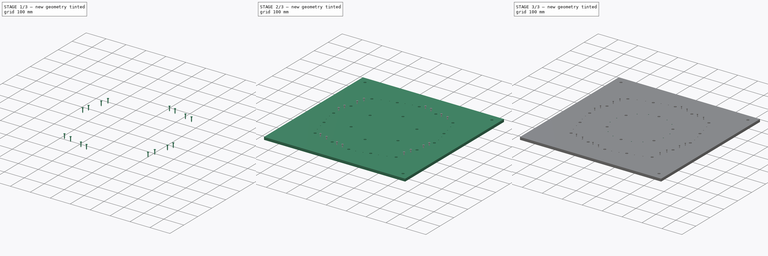
[diagram: build sequence overview — one tinted view per stage of 3, left to right]
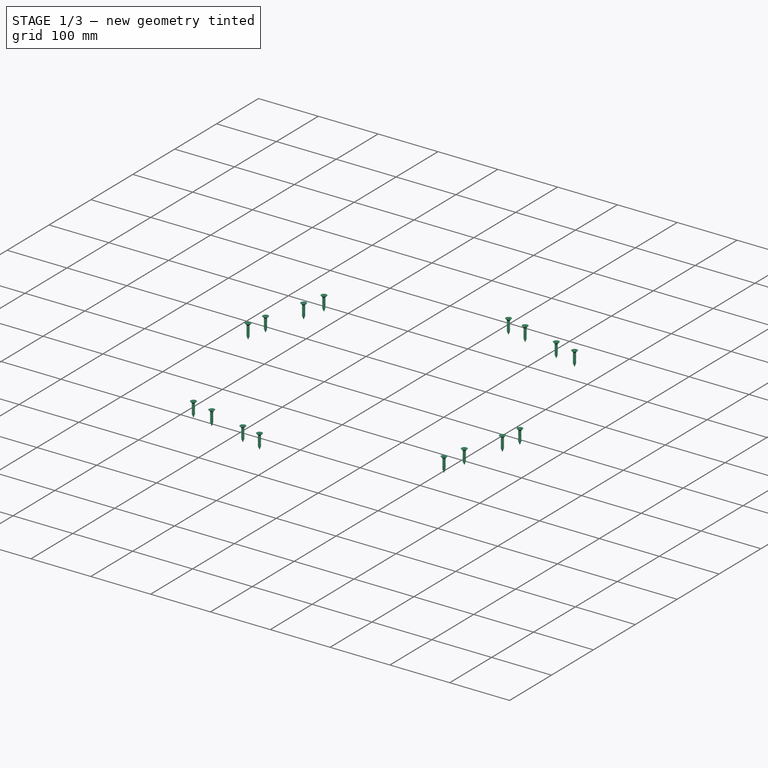
[diagram: stage 1 of 3 — iso view after this stage's code; geometry added in this stage tinted green]
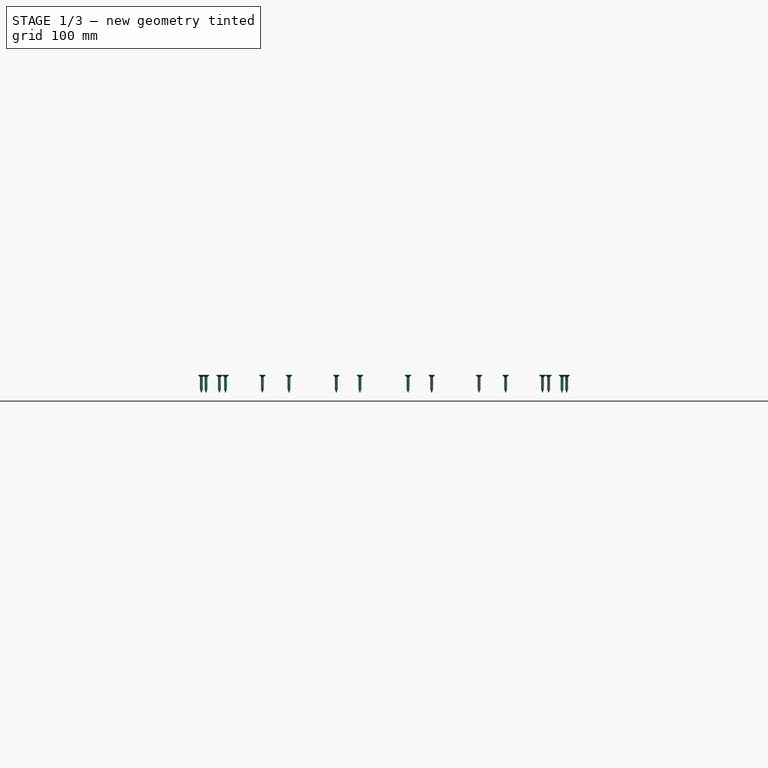
[diagram: stage 1 of 3 — front view after this stage's code; geometry added in this stage tinted green]
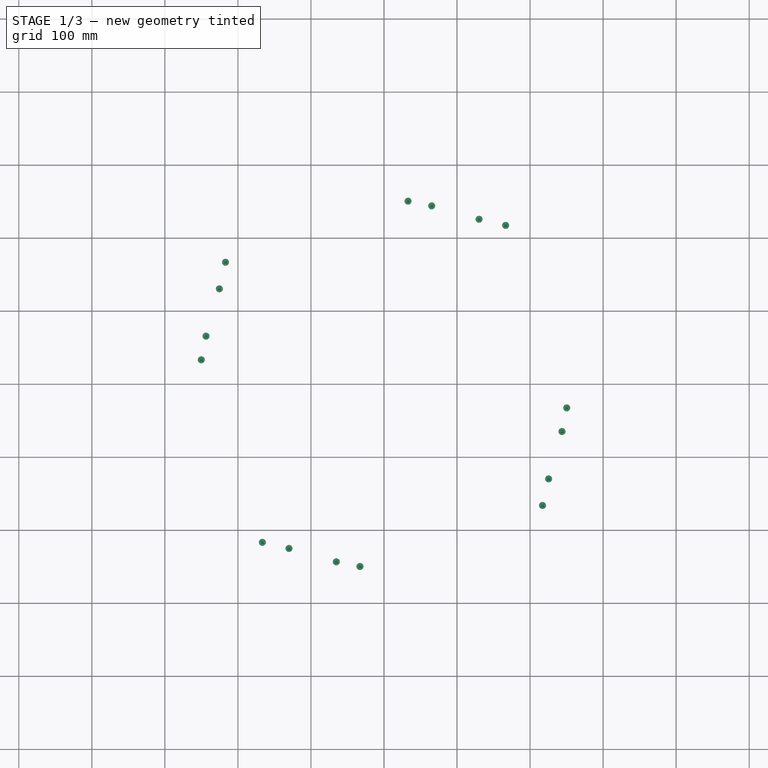
[diagram: stage 1 of 3 — top view after this stage's code; geometry added in this stage tinted green]
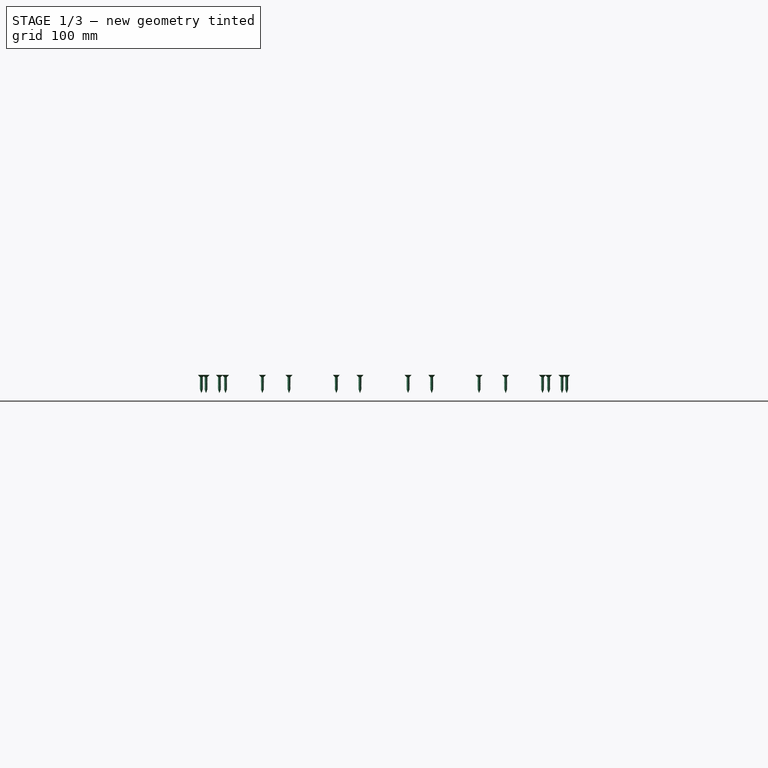
[diagram: stage 1 of 3 — right view after this stage's code; geometry added in this stage tinted green]
FCSTD DOCUMENT  (FreeCAD 0.21R33771 (Git))
Label: Stator_Mold_BoltShaftLayer_Circular
License: All rights reserved
LicenseURL: http://en.wikipedia.org/wiki/All_rights_reserved
objects: App::Link×7, App::Part×4, Sketcher::SketchObject×2, PartDesign::PolarPattern×2, PartDesign::Pocket×2, Part::FeaturePython×2, Spreadsheet::Sheet×1, PartDesign::Plane×1, PartDesign::Mirrored×1, PartDesign::SubShapeBinder×1, PartDesign::FeatureBase×1, PartDesign::MultiTransform×1, PartDesign::Body×1, Part::Mirroring×1
note: 15 computed .brp shape members not serialized (recipe doc carries the construction recipe); baked Part::Feature solids carry a one-line shape summary decoded from their .brp
EXTERNAL_REF file=../../../Master_of_Puppets.FCStd obj=Alternator
EXTERNAL_REF file=../../../Master_of_Puppets.FCStd obj=Spreadsheet
EXTERNAL_REF file=Stator_Mold_BoltShaftPattern_Circular.FCStd obj=Body
EXTERNAL_REF file=../../../Fasteners/Fastener_WoodScrew_StatorMold.FCStd obj=Part

FEATURE [Spreadsheet::Sheet] Spreadsheet
  cells = A1='Inputs; A2='StatorThickness; B2='NumberOfHoles; C2='EarAngle; A3(StatorThickness)==Master_of_Puppets#Spreadsheet.StatorThickness; B3(NumberOfHoles)==Master_of_Puppets#Alternator.NumberOfStatorHoles; C3(EarAngle)==Master_of_Puppets#Alternator.EarAngle; A4='StatorMoldScrewHoleRadius; B4='EarSize; C4='LengthMiddleHoles; A5(StatorMoldScrewHoleRadius)==Master_of_Puppets#Alternator.StatorMoldScrewHoleRadius; B5(EarSize)==Master_of_Puppets#Alternator.EarSize; C5(LengthMiddleHoles)==Master_of_Puppets#Alternator.LengthMiddleHoles; A6='IslandInnerRadius; B6='LargeHoleAngle; C6='StatorMoldIslandScrewAngle; A7(IslandInnerRadius)==Master_of_Puppets#Alternator.IslandInnerRadius; B7(LargeHoleAngle)==Master_of_Puppets#Alternator.LargeHoleAngle; C7(StatorMoldIslandScrewAngle)==Master_of_Puppets#Alternator.StatorMoldIslandScrewAngle; A8='StatorMoldIslandNumberOfScrewSectors; B8='StatorMoldHolesSketchAngle; C8='StatorMoldIslandNumberOfBolts; A9(StatorMoldIslandNumberOfScrewSectors)==Master_of_Puppets#Alternator.StatorMoldIslandNumberOfScrewSectors; B9(StatorMoldHolesSketchAngle)==Master_of_Puppets#Alternator.StatorMoldHolesSketchAngle; C9(StatorMoldIslandNumberOfBolts)==Master_of_Puppets#Alternator.StatorMoldIslandNumberOfBolts; A10='RotorDiskRadius; B10='StatorMoldIslandNumberOfPolarPatternScrewOccurrences; C10='StatorMoldScrewLength; A11(RotorDiskRadius)==Master_of_Puppets#Spreadsheet.RotorDiskRadius; B11(StatorMoldIslandNumberOfPolarPatternScrewOccurrences)==Master_of_Puppets#Alternator.StatorMoldIslandNumberOfPolarPatternScrewOccurrences; C11(StatorMoldScrewLength)==Master_of_Puppets#Alternator.StatorMoldScrewLength; A12='Calculated; A13='SpokeAngle; B13='ScrewZ; C13='IslandScrewAngleOffset; A14(SpokeAngle)==LargeHoleAngle / 3; B14(ScrewZ)==StatorThickness * 2 - StatorMoldScrewLength; C14(IslandScrewAngleOffset)==90 deg; A15='InnerScrew1X; B15='InnerScrew1Y; A16(InnerScrew1X)==IslandInnerRadius * cos(StatorMoldIslandScrewAngle + IslandScrewAngleOffset); B16(InnerScrew1Y)==IslandInnerRadius * sin(StatorMoldIslandScrewAngle + IslandScrewAngleOffset); A17='InnerScrew2X; B17='InnerScrew2Y; A18(InnerScrew2X)==IslandInnerRadius * cos(StatorMoldIslandScrewAngle * 2 + IslandScrewAngleOffset); B18(InnerScrew2Y)==IslandInnerRadius * sin(StatorMoldIslandScrewAngle * 2 + IslandScrewAngleOffset); A19='Description:; B19='Calculate position of 4 outer screws. From perspective of TOP view going counter clockwise.; A20='OuterScrewBaseAngle; A21(OuterScrewBaseAngle)==270 - EarAngle / 2 + SpokeAngle; A22='OuterScrew1X; B22='OuterScrew1Y; A23(OuterScrew1X)==LengthMiddleHoles * cos(OuterScrewBaseAngle); B23(OuterScrew1Y)==LengthMiddleHoles * sin(OuterScrewBaseAngle); A24='OuterScrew2X; B24='OuterScrew2Y; A25(OuterScrew2X)==LengthMiddleHoles * cos(OuterScrewBaseAngle + SpokeAngle); B25(OuterScrew2Y)==LengthMiddleHoles * sin(OuterScrewBaseAngle + SpokeAngle); A26='Description:; B26='The following equations are to determine the placement of the outer screws by finding the equation of the line tangent to the circle that forms the "ear" and crosses through the point where the bolt is.; A27='BoltAngle; A28(BoltAngle)==270 - EarAngle / 2 + LargeHoleAngle; A29='a = x coordinate of external point; B29='b = y coordinate of external point; C29='r = radius of circle; D29='v = vertical offset of center of circle ; A30='a; B30='b; C30='r; D30='v; A31(a)==LengthMiddleHoles * cos(BoltAngle); B31(b)==LengthMiddleHoles * sin(BoltAngle); C31(r)==EarSize; D31(v)==-LengthMiddleHoles; A32='1) equation for slope of tangent line is derived from plugging in point slope form equation of a line in terms of y into y for equation of circle; B32='2) then the equation is set to the standard form for a quadratic equation (a * x^2 + b * x + c) to determine a, b, and c.; C32='3) once a, b, and c are determined, then we plug it into b^2 - 4*a*c = 0 and solve for m; D32='4) this results in a quadratic equation for m with two solutions, and the negative solution is chosen.; A33='https://www.wolframalpha.com/input?i=x%5E2+%2B+%28mx+-+ma+%2B+b+-+v%29%5E2+%3D+r%5E2; B33=' a = (m^2 + 1), b = (-2*(m^2)*a + 2*b*m - 2*m*v), c = ((a^2)*(m^2) - 2*a*b*m + 2*a*m*v + b^2 - 2*b*v + v^2 - r^2).; C33='https://www.wolframalpha.com/input?i=%28-2*%28m%5E2%29*a+%2B+2*b*m+-+2*m*v%29%5E2+-+4*%28m%5E2+%2B+1%29*%28%28a%5E2%29*%28m%5E2%29+-+2*a*b*m+%2B+2*a*m*v+%2B+b%5E2+-+2*b*v+%2B+v%5E2+-+r%5E2%29+solve+for+m; A34='Equation of tangent line; A35='p (slope); B35='yIntercept; A36(p)==(-sqrt(r ^ 2 * (a ^ 2 + b ^ 2 - 2 * b * v - r ^ 2 + v ^ 2)) + a * b - a * v) / (a ^ 2 - r ^ 2); B36(yIntercept)==b - p * a; A37='Tx; B37='Ty; C37='(T)angent Point Coordinates; A38(Tx)==(-sqrt(-(a ^ 2) * p ^ 2 + 2 * b * (a * p + v) - 2 * a * p * v - b ^ 2 + p ^ 2 * r ^ 2 + r ^ 2 - v ^ 2) + a * p ^ 2 - b * p + p * v) / (p ^ 2 + 1); B38(Ty)==p * Tx + yIntercept; A39='TangentPoint; B39='BoltPoint; C39='Vector; A40(TangentPoint)==create(<<vector>>; Tx; Ty; 0); B40(BoltPoint)==create(<<vector>>; a; b; 0); C40(Vector)==TangentPoint - BoltPoint; A41='DistanceBetweenTangentPointAndBoltPoint; B41='ThirdOfDistance; C41='NormalizedVector; A42(DistanceBetweenTangentPointAndBoltPoint)==.Vector.Length; B42(ThirdOfDistance)==DistanceBetweenTangentPointAndBoltPoint / 3; C42(NormalizedVector)==.Vector / .Vector.Length; A43='Point1; B43='SpokeArcLength; A44(Point1)==TangentPoint - NormalizedVector * SpokeArcLength; B44(SpokeArcLength)==SpokeAngle * pi / 180 * LengthMiddleHoles; A45='Point3Angle; B45='Point3AlongCircle; C45='LineFromOriginToPoint3AlongCircleSlope; A46(Point3Angle)==OuterScrewBaseAngle + SpokeAngle * 3; B46(Point3AlongCircle)==create(<<vector>>; LengthMiddleHoles * cos(Point3Angle); LengthMiddleHoles * sin(Point3Angle); 0); C46(LineFromOriginToPoint3AlongCircleSlope)==.Point3AlongCircle.y / .Point3AlongCircle.x; A47='Intersection between tangent line and line from origin to point 3 along circle.; A48='OuterScrew3X; B48='OuterScrew3Y; C48='OuterScrew3Point; A49(OuterScrew3X)==yIntercept / (LineFromOriginToPoint3AlongCircleSlope - p); B49(OuterScrew3Y)==LineFromOriginToPoint3AlongCircleSlope * OuterScrew3X; C49(OuterScrew3Point)==create(<<vector>>; OuterScrew3X; OuterScrew3Y; 0); A50='Point4Angle; B50='Point4AlongCircle; C50='LineFromOriginToPoint4AlongCircleSlope; A51(Point4Angle)==Point3Angle + SpokeAngle; B51(Point4AlongCircle)==create(<<vector>>; LengthMiddleHoles * cos(Point4Angle); LengthMiddleHoles * sin(Point4Angle); 0); C51(LineFromOriginToPoint4AlongCircleSlope)==.Point4AlongCircle.y / .Point4AlongCircle.x; A52='Intersection between tangent line and line from origin to point 4 along circle.; A53='OuterScrew4X; B53='OuterScrew4Y; C53='OuterScrew4Point; A54(OuterScrew4X)==yIntercept / (LineFromOriginToPoint4AlongCircleSlope - p); B54(OuterScrew4Y)==LineFromOriginToPoint4AlongCircleSlope * OuterScrew4X; C54(OuterScrew4Point)==create(<<vector>>; OuterScrew4X; OuterScrew4Y; 0)
FEATURE [PartDesign::Plane] DatumPlane001  label="DatumPlane"
  AttachmentOffset = pos=(0,0,13) rot=(0,0,1;0rad)
  Length = 849.239
  MapMode = 5
  Placement = pos=(0,0,13) rot=(0,0,1;0rad)
  ResizeMode = 0
  Support = -> [XY_Plane]
  Width = 849.239
  expr: .AttachmentOffset.Base.z = Spreadsheet.StatorThickness
FEATURE [Sketcher::SketchObject] Sketch005  label="OuterScrewsSketch"
  AttachmentOffset = pos=(0,0,0) rot=(0,0,1;0.785398rad)
  FullyConstrained = true
  MapMode = 5
  Placement = pos=(0,0,13) rot=(0,0,1;0.785398rad)
  Support = -> [DatumPlane001]
  expr: .AttachmentOffset.Rotation.Angle = Spreadsheet.StatorMoldHolesSketchAngle
  expr: Constraints[16] = Spreadsheet.EarAngle
  expr: Constraints[21] = Spreadsheet.SpokeAngle
  expr: Constraints[23] = Spreadsheet.StatorMoldScrewHoleRadius
  expr: Constraints[25] = Spreadsheet.SpokeAngle
  expr: Constraints[29] = Spreadsheet.LargeHoleAngle
  expr: Constraints[34] = Spreadsheet.SpokeAngle
  expr: Constraints[38] = Spreadsheet.SpokeAngle
  expr: Constraints[3] = Spreadsheet.LengthMiddleHoles
  expr: Constraints[6] = Spreadsheet.EarSize
  sketch-geometry (18):
    g0: Circle CenterX=0 CenterY=0 CenterZ=0 NormalX=0 NormalY=0 NormalZ=1 AngleXU=0 Radius=252.29
    g1: LineSegment StartX=0 StartY=0 StartZ=0 EndX=0 EndY=-252.29 EndZ=0
    g2: Circle CenterX=0 CenterY=-252.29 CenterZ=0 NormalX=0 NormalY=0 NormalZ=1 AngleXU=0 Radius=35
    g3: LineSegment StartX=17.7851 StartY=-282.434 StartZ=0 EndX=128.2 EndY=-217.29 EndZ=0
    g4: LineSegment StartX=-17.7851 StartY=-282.434 StartZ=0 EndX=-128.2 EndY=-217.29 EndZ=0
    g5: LineSegment StartX=0 StartY=0 StartZ=0 EndX=-178.396 EndY=-178.396 EndZ=0
    g6: LineSegment StartX=0 StartY=0 StartZ=0 EndX=178.396 EndY=-178.396 EndZ=0
    g7: ArcOfCircle CenterX=0 CenterY=0 CenterZ=0 NormalX=0 NormalY=0 NormalZ=1 AngleXU=0 Radius=252.29 StartAngle=3.92699 EndAngle=4.17936
    g8: ArcOfCircle CenterX=0 CenterY=0 CenterZ=0 NormalX=0 NormalY=0 NormalZ=1 AngleXU=0 Radius=252.29 StartAngle=5.24542 EndAngle=5.49779
    g9: LineSegment StartX=0 StartY=0 StartZ=0 EndX=-153.584 EndY=-200.155 EndZ=0
    g10: Circle CenterX=-153.584 CenterY=-200.155 CenterZ=0 NormalX=0 NormalY=0 NormalZ=1 AngleXU=0 Radius=2
    g11: LineSegment StartX=0 StartY=0 StartZ=0 EndX=-126.145 EndY=-218.49 EndZ=0
    g12: Circle CenterX=-126.145 CenterY=-218.49 CenterZ=0 NormalX=0 NormalY=0 NormalZ=1 AngleXU=0 Radius=2
    g13: LineSegment StartX=0 StartY=0 StartZ=0 EndX=-96.5472 EndY=-233.086 EndZ=0
    g14: LineSegment StartX=0 StartY=0 StartZ=0 EndX=-67.7752 EndY=-252.941 EndZ=0
    g15: Circle CenterX=-67.7752 CenterY=-252.941 CenterZ=0 NormalX=0 NormalY=0 NormalZ=1 AngleXU=0 Radius=2
    g16: LineSegment StartX=0 StartY=0 StartZ=0 EndX=-35.7851 EndY=-271.815 EndZ=0
    g17: Circle CenterX=-35.7851 CenterY=-271.815 CenterZ=0 NormalX=0 NormalY=0 NormalZ=1 AngleXU=0 Radius=2
  constraints (44):
    c: Coincident(g0,g-1)
    c: Coincident(g1,g-1)
    c: Vertical(g1)
    c: Radius(g0) = 252.29
    c: Coincident(g2,g1)
    c: Tangent(g3,g0)
    c: Radius(g2) = 35
    c: Symmetric(g6,g5,g1)
    c: Coincident(g7,g5)
    c: Coincident(g7,g4)
    c: Coincident(g8,g6)
    c: Coincident(g8,g3)
    c: Coincident(g6,g5)
    c: Coincident(g5,g7)
    c: Coincident(g5,g-1)
    c: Coincident(g8,g5)
    c: Angle(g5,g6) = 1.5708
    c: Tangent(g3,g2) = -1.5708
    c: Tangent(g4,g0) = 1.5708
    c: Coincident(g9,g5)
    c: PointOnObject(g9,g7)
    c: Angle(g5,g9) = 0.1309
    c: Coincident(g10,g9)
    c: Radius(g10) = 2
    c: Coincident(g11,g-1)
    c: Angle(g9,g11) = 0.1309
    c: PointOnObject(g12,g7)
    c: Coincident(g12,g11)
    c: Coincident(g13,g-1)
    c: Angle(g5,g13) = 0.392699
    c: Tangent(g4,g2) = 1.5708
    c: PointOnObject(g1,g0)
    c: Coincident(g14,g-1)
    c: PointOnObject(g14,g4)
    c: Angle(g13,g14) = 0.1309
    c: Coincident(g15,g14)
    c: Coincident(g16,g-1)
    c: PointOnObject(g16,g4)
    c: Angle(g14,g16) = 0.1309
    c: Coincident(g17,g16)
    c: PointOnObject(g13,g0)
    c: Equal(g17,g15)
    c: Equal(g15,g12)
    c: Equal(g12,g10)
FEATURE [PartDesign::Mirrored] Mirrored  label="OuterScrewsMirrored"
  MirrorPlane = -> Sketch005 [V_Axis]
FEATURE [PartDesign::PolarPattern] PolarPattern002  label="OuterScrewsPolarPattern"
  Angle = 360
  Axis = -> Sketch005 [N_Axis]
  Occurrences = 4
  expr: Occurrences = Spreadsheet.NumberOfHoles
FEATURE [Sketcher::SketchObject] Sketch  label="InnerScrewsSketch"
  FullyConstrained = true
  MapMode = 5
  Placement = pos=(0,0,13) rot=(0,0,1;0rad)
  Support = -> [DatumPlane001]
  expr: Constraints[3] = Spreadsheet.IslandInnerRadius
  expr: Constraints[4] = Spreadsheet.StatorMoldIslandScrewAngle
  expr: Constraints[6] = Spreadsheet.StatorMoldScrewHoleRadius
  sketch-geometry (3):
    g0: Circle CenterX=0 CenterY=0 CenterZ=0 NormalX=0 NormalY=0 NormalZ=1 AngleXU=0 Radius=135.644
    g1: LineSegment StartX=0 StartY=0 StartZ=0 EndX=-46.393 EndY=127.464 EndZ=0
    g2: Circle CenterX=-46.393 CenterY=127.464 CenterZ=0 NormalX=0 NormalY=0 NormalZ=1 AngleXU=0 Radius=2
  constraints (7):
    c: Coincident(g0,g-1)
    c: Coincident(g1,g0)
    c: PointOnObject(g1,g0)
    c: Radius(g0) = 135.644
    c: Angle(g-2,g1) = 0.349066
    c: Coincident(g2,g1)
    c: Radius(g2) = 2
FEATURE [App::Link] Link  label="Stator_Mold_BoltShaftPattern"
  LinkedObject = -> <external Stator_Mold_BoltShaftPattern_Circular.FCStd>#Body
FEATURE [PartDesign::SubShapeBinder] Binder
  BindCopyOnChange = 0
  BindMode = 0
  ClaimChildren = true
  Context = -> Body [Binder.]
  Fuse = false
  MakeFace = true
  OffsetFill = false
  OffsetIntersection = false
  OffsetJoinType = 0
  OffsetOpenResult = false
  PartialLoad = false
  Refine = true
  Relative = true
  Support = -> [Link]
  _Version = 2
FEATURE [PartDesign::FeatureBase] BaseFeature
  BaseFeature = -> Binder
FEATURE [PartDesign::Pocket] Pocket001  label="OuterScrewsPocket"
  BaseFeature = -> BaseFeature
  Direction = (0,0,-1)
  Length = 5
  Length2 = 100
  Profile = -> Sketch005
  Type = 1
FEATURE [PartDesign::MultiTransform] MultiTransform  label="OuterScrewsMultiTransform"
  BaseFeature = -> Pocket001
  Originals = -> [Pocket001]
  Transformations = -> [Mirrored,PolarPattern002]
FEATURE [PartDesign::Pocket] Pocket  label="InnerScrewsPocket"
  BaseFeature = -> MultiTransform
  Direction = (0,0,-1)
  Length = 5
  Length2 = 100
  Profile = -> Sketch
  Type = 1
FEATURE [PartDesign::PolarPattern] PolarPattern  label="InnerScrewsPolarPattern"
  Angle = 360
  Axis = -> Z_Axis
  BaseFeature = -> Pocket
  Occurrences = 18
  Originals = -> [Pocket]
  expr: Occurrences = Spreadsheet.StatorMoldIslandNumberOfScrewSectors
FEATURE [PartDesign::Body] Body  label="Stator_Mold_BoltShaftLayer"
  BaseFeature = -> Binder
  Group = -> [BaseFeature,DatumPlane001,Sketch005,Pocket001,MultiTransform,Mirrored,PolarPattern002,Sketch,Pocket,PolarPattern]
  Openafpm_Flat = true
  Origin = -> Origin
  Tip = -> PolarPattern
FEATURE [App::Link] Link001  label="Fastener_WoodScrew_Inner1"
  LinkPlacement = pos=(-46.393,127.464,0) rot=(0,0,1;0rad)
  LinkedObject = -> <external ../../../Fasteners/Fastener_WoodScrew_StatorMold.FCStd>#Part
  Placement = pos=(-46.393,127.464,0) rot=(0,0,1;0rad)
  expr: .Placement.Base.x = Spreadsheet.InnerScrew1X
  expr: .Placement.Base.y = Spreadsheet.InnerScrew1Y
FEATURE [App::Link] Link002  label="Fastener_WoodScrew_Inner2"
  LinkPlacement = pos=(-87.1904,103.909,0) rot=(0,0,1;0rad)
  LinkedObject = -> Link001
  Placement = pos=(-87.1904,103.909,0) rot=(0,0,1;0rad)
  expr: .Placement.Base.x = Spreadsheet.InnerScrew2X
  expr: .Placement.Base.y = Spreadsheet.InnerScrew2Y
FEATURE [App::Part] Part  label="Inner_Screws_Part"
  Group = -> [Link001,Link002]
  Origin = -> Origin001
FEATURE [Part::FeaturePython] Array  label="IslandScrews"  # Draft array (typed FeaturePython)
  AlwaysSyncPlacement = false
  Angle = 360
  ArrayType = 1
  Axis = (0,0,1)
  Base = -> Part
  Center = (0,0,0)
  Count = 6
  ExpandArray = false
  Fuse = false
  IntervalAxis = (0,0,0)
  IntervalX = (50,0,0)
  IntervalY = (0,50,0)
  IntervalZ = (0,0,50)
  NumberCircles = 3
  NumberPolar = 6
  NumberX = 2
  NumberY = 2
  NumberZ = 1
  Placement = pos=(0,0,1) rot=(0,0,1;0rad)
  PlacementList = 6 placements: [(0,0,0),(0,0,0),(0,0,0),(0,0,0),(0,0,0),(0,0,0)]
  RadialDistance = 50
  ScaleList = (6) [(1,1,1),(1,1,1),(1,1,1),(1,1,1),(1,1,1),(1,1,1)]
  Symmetry = 1
  TangentialDistance = 25
  expr: .Placement.Base.z = Spreadsheet.ScrewZ
  expr: NumberPolar = Spreadsheet.StatorMoldIslandNumberOfPolarPatternScrewOccurrences
FEATURE [App::Link] Link003  label="Fastener_WoodScrew_Outer1"
  AttacherType = Attacher::AttachEngine3D
  LinkPlacement = pos=(-153.584,-200.155,0) rot=(0,0,1;0rad)
  LinkedObject = -> Link001
  Placement = pos=(-153.584,-200.155,0) rot=(0,0,1;0rad)
  expr: .Placement.Base.x = Spreadsheet.OuterScrew1X
  expr: .Placement.Base.y = Spreadsheet.OuterScrew1Y
FEATURE [App::Link] Link004  label="Fastener_WoodScrew_Outer2"
  LinkPlacement = pos=(-126.145,-218.49,0) rot=(0,0,1;0rad)
  LinkedObject = -> Link003
  Placement = pos=(-126.145,-218.49,0) rot=(0,0,1;0rad)
  expr: .Placement.Base.x = Spreadsheet.OuterScrew2X
  expr: .Placement.Base.y = Spreadsheet.OuterScrew2Y
FEATURE [App::Link] Link005  label="Fastener_WoodScrew_Outer3"
  LinkPlacement = pos=(-67.3571,-251.38,0) rot=(0,0,1;0rad)
  LinkedObject = -> Link004
  Placement = pos=(-67.3571,-251.38,0) rot=(0,0,1;0rad)
  expr: .Placement.Base.x = Spreadsheet.OuterScrew3X
  expr: .Placement.Base.y = Spreadsheet.OuterScrew3Y
FEATURE [App::Link] Link006  label="Fastener_WoodScrew_Outer4"
  LinkPlacement = pos=(-35.7064,-271.217,0) rot=(0,0,1;0rad)
  LinkedObject = -> Link005
  Placement = pos=(-35.7064,-271.217,0) rot=(0,0,1;0rad)
  expr: .Placement.Base.x = Spreadsheet.OuterScrew4X
  expr: .Placement.Base.y = Spreadsheet.OuterScrew4Y
FEATURE [App::Part] Part002  label="Screws_Outer_Part"
  Group = -> [Link003,Link004,Link005,Link006]
  Origin = -> Origin003
FEATURE [Part::Mirroring] Part__Mirroring  label="Screws_Outer_Part_Mirror"
  Base = (0,0,0)
  Normal = (1,0,0)
  Source = -> Part002
FEATURE [App::Part] Part003  label="Screws_Outer_Part_Mirror_Part"
  Group = -> [Part002,Part__Mirroring]
  Origin = -> Origin004
FEATURE [Part::FeaturePython] Array001  label="SurroundScrews"  # Draft array (typed FeaturePython)
  AlwaysSyncPlacement = false
  Angle = 360
  ArrayType = 1
  Axis = (0,0,1)
  Base = -> Part003
  Center = (0,0,0)
  Count = 4
  ExpandArray = false
  Fuse = false
  IntervalAxis = (0,0,0)
  IntervalX = (50,0,0)
  IntervalY = (0,50,0)
  IntervalZ = (0,0,50)
  NumberCircles = 3
  NumberPolar = 4
  NumberX = 2
  NumberY = 2
  NumberZ = 1
  Placement = pos=(0,0,1) rot=(0,0,1;0.785398rad)
  PlacementList = 4 placements: [(0,0,0),(0,0,0),(0,0,0),(0,0,0)]
  RadialDistance = 50
  ScaleList = (4) [(1,1,1),(1,1,1),(1,1,1),(1,1,1)]
  Symmetry = 1
  TangentialDistance = 25
  expr: .Placement.Base.z = Spreadsheet.ScrewZ
  expr: .Placement.Rotation.Angle = Spreadsheet.StatorMoldHolesSketchAngle
  expr: NumberPolar = Spreadsheet.NumberOfHoles
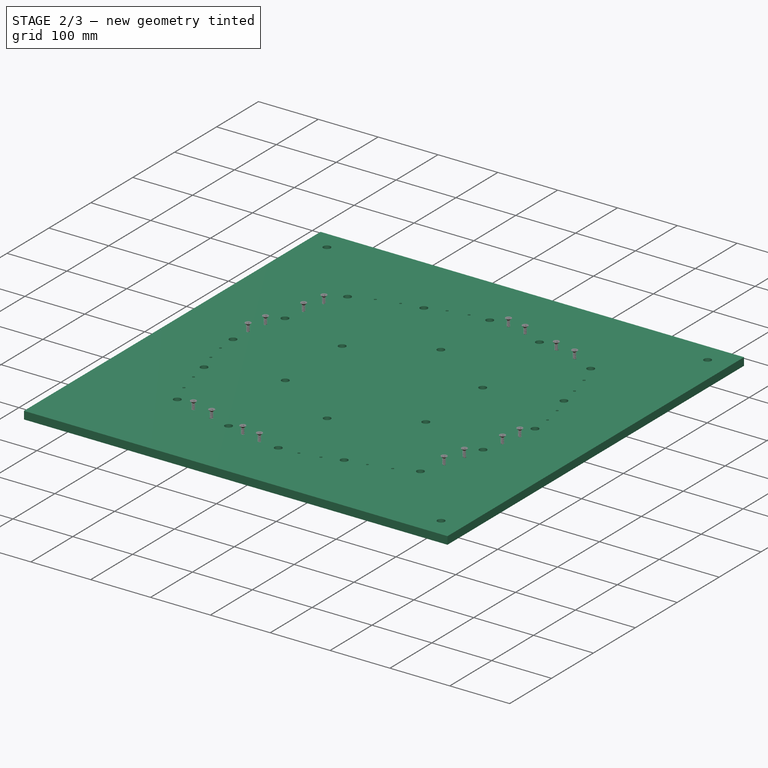
[diagram: stage 2 of 3 — iso view after this stage's code; geometry added in this stage tinted green]
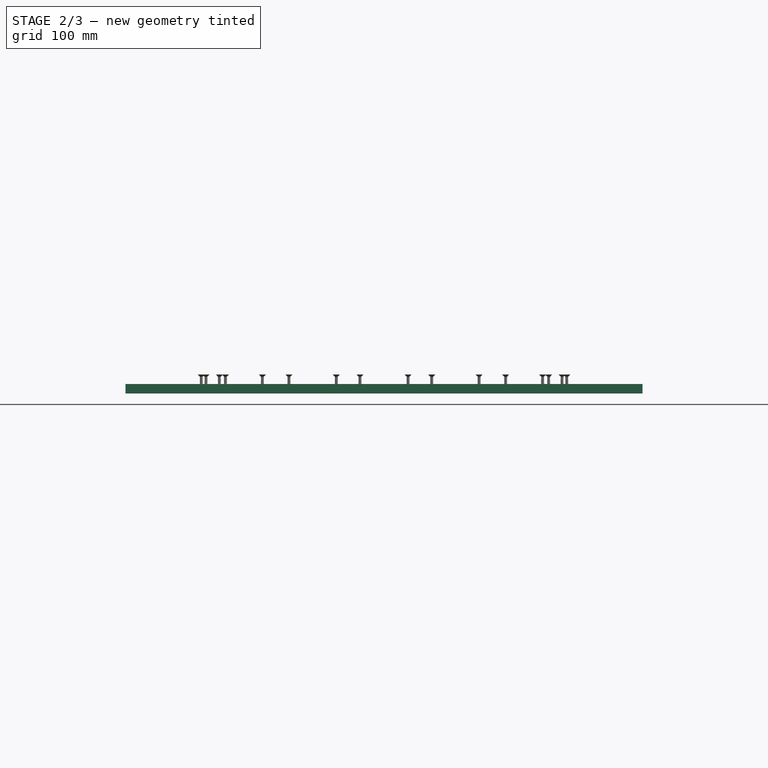
[diagram: stage 2 of 3 — front view after this stage's code; geometry added in this stage tinted green]
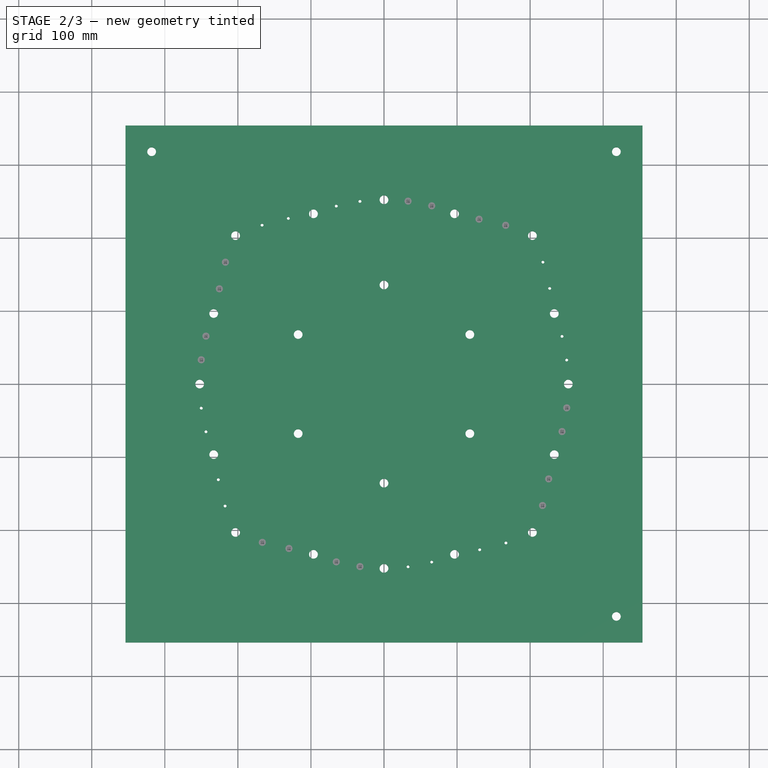
[diagram: stage 2 of 3 — top view after this stage's code; geometry added in this stage tinted green]
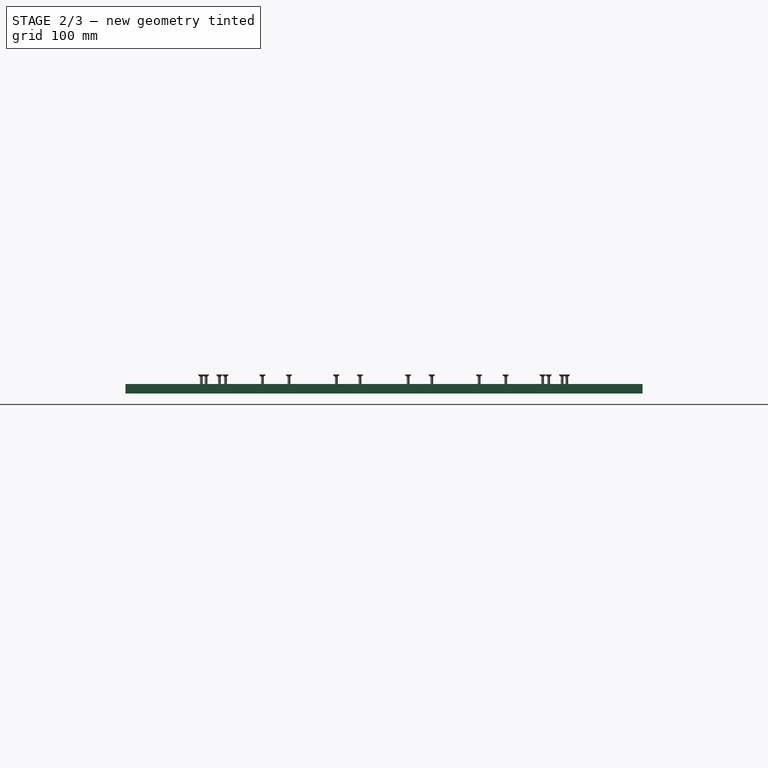
[diagram: stage 2 of 3 — right view after this stage's code; geometry added in this stage tinted green]
FEATURE [App::Part] Part001  label="Stator_Mold_BoltShaftLayer_Assembly"
  Group = -> [Binder,Body,Part,Array,Part003,Array001]
  Origin = -> Origin002

RESOLVED EXTERNAL PARTS (link-assembly join: the EXTERNAL_REF files above that resolve inside this repo's crawl, each included once):
---- part ../../../Fasteners/Fastener_WoodScrew_StatorMold.FCStd = doc fcstd_eb62fdcb5adc ----
FCSTD DOCUMENT  (FreeCAD 0.21R33771 (Git))
Label: Fastener_WoodScrew_StatorMold
License: All rights reserved
LicenseURL: http://en.wikipedia.org/wiki/All_rights_reserved
objects: Sketcher::SketchObject×4, PartDesign::Plane×4, Part::Helix×2, PartDesign::ShapeBinder×2, PartDesign::AdditiveCone×2, PartDesign::AdditiveCylinder×1, Part::Sweep×1, PartDesign::AdditivePipe×1, PartDesign::SubtractiveLoft×1, PartDesign::Body×1, Spreadsheet::Sheet×1, App::Link×1, App::Part×1
note: 24 computed .brp shape members not serialized (recipe doc carries the construction recipe); baked Part::Feature solids carry a one-line shape summary decoded from their .brp
EXTERNAL_REF file=../Master_of_Puppets.FCStd obj=Alternator
EXTERNAL_REF file=../Master_of_Puppets.FCStd obj=Fastener

FEATURE [Part::Helix] Helix  label="TipThreadPath"
  Angle = 10.758
  AttacherType = Attacher::AttachEngine3D
  Height = 5
  LocalCoord = 0
  Pitch = 2.5
  Placement = pos=(0.01,0,0.05) rot=(0,0,1;0rad)
  Radius = 0
  SegmentLength = 0
  Style = 1
  expr: .Placement.Base.x = Spreadsheet.TipThreadPathX
  expr: .Placement.Base.z = Spreadsheet.TipThreadPathZ
  expr: Angle = Spreadsheet.TipThreadPathAngle
  expr: Height = Spreadsheet.TipHeight
  expr: Pitch = Spreadsheet.TipThreadPathPitch
FEATURE [PartDesign::ShapeBinder] ShapeBinder  label="TipThreadPathBinder"
  Placement = pos=(0.01,0,0.05) rot=(0,0,1;0rad)
  Support = -> [Helix]
  TraceSupport = true
FEATURE [Sketcher::SketchObject] Sketch  label="TipThreadProfile"
  FullyConstrained = true
  MapMode = 5
  Placement = pos=(0,0,0) rot=(1,0,0;1.5708rad)
  Support = -> [XZ_Plane]
  expr: Constraints[6] = Spreadsheet.TipThreadProfileHeight
  expr: Constraints[7] = Spreadsheet.TipThreadProfileWidth
  sketch-geometry (3):
    g0: LineSegment StartX=0 StartY=0.1 StartZ=0 EndX=0.05 EndY=0.1 EndZ=0
    g1: LineSegment StartX=0.05 StartY=0.1 StartZ=0 EndX=0 EndY=0 EndZ=0
    g2: LineSegment StartX=0 StartY=0.1 StartZ=0 EndX=0 EndY=0 EndZ=0
  constraints (8):
    c: PointOnObject(g0,g-2)
    c: Horizontal(g0)
    c: Coincident(g0,g1)
    c: Coincident(g1,g-1)
    c: Coincident(g2,g0)
    c: Coincident(g2,g1)
    c: DistanceY(g2,g2) = 0.1
    c: DistanceX(g0,g0) = 0.05
FEATURE [PartDesign::Plane] DatumPlane001  label="ShankPlane"
  Length = 60
  MapMode = 2
  Placement = pos=(0,0,12.75) rot=(0,0,1;0rad)
  ResizeMode = 0
  Width = 60
  expr: .Placement.Base.z = Spreadsheet.ShankPlaneZ
FEATURE [PartDesign::Plane] DatumPlane  label="TipPlane"
  Length = 60
  MapMode = 2
  Placement = pos=(0,0,5) rot=(0,0,1;0rad)
  ResizeMode = 0
  Width = 60
  expr: .Placement.Base.z = Spreadsheet.TipHeight
FEATURE [PartDesign::AdditiveCone] Cone  label="Tip"
  Angle = 360
  AttacherType = Attacher::AttachEngine3D
  Height = 5
  Radius1 = 0
  Radius2 = 1.4
  expr: Height = Spreadsheet.TipHeight
  expr: Radius2 = Spreadsheet.InnerRadius
FEATURE [PartDesign::AdditiveCylinder] Cylinder  label="Shank"
  Angle = 360
  AttacherType = Attacher::AttachEngine3D
  BaseFeature = -> Cone
  FirstAngle = 0
  Height = 7.75
  MapMode = 5
  Placement = pos=(0,0,5) rot=(0,0,1;0rad)
  Radius = 1.4
  SecondAngle = 0
  Support = -> [DatumPlane]
  expr: Height = Spreadsheet.ShankHeight
  expr: Radius = Spreadsheet.InnerRadius
FEATURE [Sketcher::SketchObject] Sketch001  label="ShankThreadProfile"
  FullyConstrained = true
  MapMode = 5
  Placement = pos=(0,0,0) rot=(1,0,0;1.5708rad)
  Support = -> [XZ_Plane]
  expr: Constraints[5] = Spreadsheet.ShankThreadThickness
  expr: Constraints[6] = Spreadsheet.ShankThreadProfileWidth
  expr: Constraints[7] = Spreadsheet.ShankThreadProfileVerticalDistanceFromCenter
  expr: Constraints[8] = Spreadsheet.Radius
  sketch-geometry (3):
    g0: LineSegment StartX=0.95 StartY=4.6 StartZ=0 EndX=0.95 EndY=5.4 EndZ=0
    g1: LineSegment StartX=0.95 StartY=5.4 StartZ=0 EndX=2 EndY=5 EndZ=0
    g2: LineSegment StartX=2 StartY=5 StartZ=0 EndX=0.95 EndY=4.6 EndZ=0
  constraints (9):
    c: Vertical(g0)
    c: Coincident(g0,g1)
    c: Coincident(g1,g2)
    c: Coincident(g2,g0)
    c: Equal(g2,g1)
    c: DistanceY(g0,g0) = 0.8
    c: DistanceX(g0,g1) = 1.05
    c: DistanceY(g-1,g1) = 5
    c: DistanceX(g-1,g1) = 2
FEATURE [Part::Sweep] Sweep  label="TipThread"
  Frenet = true
  Sections = -> [Sketch,Sketch001]
  Solid = true
  Spine = -> Helix
  Transition = 1
FEATURE [Part::Helix] Helix001  label="ShankThreadPath"
  Angle = 0
  AttacherType = Attacher::AttachEngine3D
  Height = 7.75
  LocalCoord = 0
  Pitch = 0.96875
  Placement = pos=(0,0,5) rot=(0,0,1;0rad)
  Radius = 2
  SegmentLength = 0
  Style = 1
  expr: .Placement.Base.z = Spreadsheet.TipHeight
  expr: Height = Spreadsheet.ShankHeight
  expr: Pitch = Spreadsheet.ShankThreadPathPitch
  expr: Radius = Spreadsheet.Radius
FEATURE [PartDesign::ShapeBinder] ShapeBinder001  label="ShankThreadPathBinder"
  Placement = pos=(0,0,5) rot=(0,0,1;0rad)
  Support = -> [Helix001]
  TraceSupport = false
FEATURE [PartDesign::AdditivePipe] AdditivePipe  label="ShankThread"
  AuxilleryCurvelinear = true
  AuxillerySpineTangent = false
  BaseFeature = -> Cylinder
  Binormal = (0,0,0)
  Mode = 2
  Placement = pos=(0,0,5) rot=(0,0,1;0rad)
  Profile = -> Sketch001
  Spine = -> ShapeBinder001
  SpineTangent = false
  Transformation = 1
  Transition = 0
FEATURE [PartDesign::AdditiveCone] Cone001  label="Head"
  Angle = 360
  AttacherType = Attacher::AttachEngine3D
  BaseFeature = -> AdditivePipe
  Height = 2.25
  MapMode = 5
  Placement = pos=(0,0,12.75) rot=(0,0,1;0rad)
  Radius1 = 1.4
  Radius2 = 4
  Support = -> [DatumPlane001]
  expr: Height = Spreadsheet.HeadHeight
  expr: Radius1 = Spreadsheet.InnerRadius
  expr: Radius2 = Spreadsheet.HeadRadius
FEATURE [PartDesign::Plane] DatumPlane002  label="HeadPlane"
  Length = 60
  MapMode = 2
  Placement = pos=(0,0,15) rot=(0,0,1;0rad)
  ResizeMode = 0
  Width = 60
  expr: .Placement.Base.z = Spreadsheet.HeadPlaneZ
FEATURE [Sketcher::SketchObject] Sketch002  label="CrossSketch"
  FullyConstrained = true
  MapMode = 5
  Placement = pos=(0,0,15) rot=(0,0,1;0rad)
  Support = -> [DatumPlane002]
  expr: Constraints[32] = Spreadsheet.CrossWidth
  expr: Constraints[33] = Spreadsheet.CrossHeight
  sketch-geometry (12):
    g0: LineSegment StartX=-0.7 StartY=2.4 StartZ=0 EndX=0.7 EndY=2.4 EndZ=0
    g1: LineSegment StartX=0.7 StartY=2.4 StartZ=0 EndX=0.7 EndY=0.700003 EndZ=0
    g2: LineSegment StartX=0.7 StartY=0.700003 StartZ=0 EndX=2.4 EndY=0.7 EndZ=0
    g3: LineSegment StartX=2.4 StartY=0.7 StartZ=0 EndX=2.4 EndY=-0.7 EndZ=0
    g4: LineSegment StartX=2.4 StartY=-0.7 StartZ=0 EndX=0.7 EndY=-0.7 EndZ=0
    g5: LineSegment StartX=0.7 StartY=-0.7 StartZ=0 EndX=0.7 EndY=-2.4 EndZ=0
    g6: LineSegment StartX=0.7 StartY=-2.4 StartZ=0 EndX=-0.7 EndY=-2.4 EndZ=0
    g7: LineSegment StartX=-0.7 StartY=-2.4 StartZ=0 EndX=-0.7 EndY=-0.7 EndZ=0
    g8: LineSegment StartX=-0.7 StartY=-0.7 StartZ=0 EndX=-2.4 EndY=-0.7 EndZ=0
    g9: LineSegment StartX=-2.4 StartY=-0.7 StartZ=0 EndX=-2.4 EndY=0.7 EndZ=0
    g10: LineSegment StartX=-2.4 StartY=0.7 StartZ=0 EndX=-0.7 EndY=0.7 EndZ=0
    g11: LineSegment StartX=-0.7 StartY=0.7 StartZ=0 EndX=-0.7 EndY=2.4 EndZ=0
  constraints (34):
    c: Horizontal(g0)
    c: Coincident(g0,g1)
    c: Vertical(g1)
    c: Coincident(g1,g2)
    c: Coincident(g2,g3)
    c: Vertical(g3)
    c: Coincident(g3,g4)
    c: Coincident(g4,g5)
    c: Vertical(g5)
    c: Coincident(g5,g6)
    c: Horizontal(g6)
    c: Coincident(g6,g7)
    c: Vertical(g7)
    c: Coincident(g7,g8)
    c: Horizontal(g8)
    c: Coincident(g8,g9)
    c: Vertical(g9)
    c: Coincident(g9,g10)
    c: Horizontal(g10)
    c: Coincident(g10,g11)
    c: Coincident(g11,g0)
    c: Vertical(g11)
    c: Horizontal(g4)
    c: Equal(g8,g7)
    c: Equal(g7,g10)
    c: Equal(g10,g11)
    c: Equal(g11,g2)
    c: Equal(g2,g4)
    c: Equal(g0,g9)
    c: Equal(g9,g3)
    c: Symmetric(g0,g5,g-1)
    c: Symmetric(g3,g8,g-2)
    c: DistanceX(g0,g0) = 1.4
    c: DistanceY(g5,g0) = 4.8
FEATURE [PartDesign::Plane] DatumPlane003  label="CrossRecessPlane"
  Length = 60
  MapMode = 2
  Placement = pos=(0,0,13.25) rot=(0,0,1;0rad)
  ResizeMode = 0
  Width = 60
  expr: .Placement.Base.z = Spreadsheet.CrossRecessPlaneZ
FEATURE [Sketcher::SketchObject] Sketch004  label="CrossRecessSketch"
  FullyConstrained = true
  MapMode = 5
  Placement = pos=(0,0,13.25) rot=(0,0,1;0rad)
  Support = -> [DatumPlane003]
  expr: Constraints[32] = Spreadsheet.CrossRecessHeight
  expr: Constraints[33] = Spreadsheet.CrossRecessWidth
  sketch-geometry (12):
    g0: LineSegment StartX=-0.252577 StartY=0.865979 StartZ=0 EndX=0.252577 EndY=0.865979 EndZ=0
    g1: LineSegment StartX=0.252577 StartY=0.865979 StartZ=0 EndX=0.252577 EndY=0.252577 EndZ=0
    g2: LineSegment StartX=0.252577 StartY=0.252577 StartZ=0 EndX=0.865979 EndY=0.252577 EndZ=0
    g3: LineSegment StartX=0.865979 StartY=0.252577 StartZ=0 EndX=0.865979 EndY=-0.252577 EndZ=0
    g4: LineSegment StartX=0.865979 StartY=-0.252577 StartZ=0 EndX=0.252577 EndY=-0.252577 EndZ=0
    g5: LineSegment StartX=0.252577 StartY=-0.252577 StartZ=0 EndX=0.252577 EndY=-0.865979 EndZ=0
    g6: LineSegment StartX=0.252577 StartY=-0.865979 StartZ=0 EndX=-0.252577 EndY=-0.865979 EndZ=0
    g7: LineSegment StartX=-0.252577 StartY=-0.865979 StartZ=0 EndX=-0.252577 EndY=-0.252577 EndZ=0
    g8: LineSegment StartX=-0.252577 StartY=-0.252577 StartZ=0 EndX=-0.865979 EndY=-0.252577 EndZ=0
    g9: LineSegment StartX=-0.865979 StartY=-0.252577 StartZ=0 EndX=-0.865979 EndY=0.252577 EndZ=0
    g10: LineSegment StartX=-0.865979 StartY=0.252577 StartZ=0 EndX=-0.252577 EndY=0.252577 EndZ=0
    g11: LineSegment StartX=-0.252577 StartY=0.252577 StartZ=0 EndX=-0.252577 EndY=0.865979 EndZ=0
  constraints (34):
    c: Horizontal(g0)
    c: Coincident(g0,g1)
    c: Vertical(g1)
    c: Coincident(g1,g2)
    c: Coincident(g2,g3)
    c: Vertical(g3)
    c: Coincident(g3,g4)
    c: Coincident(g4,g5)
    c: Vertical(g5)
    c: Coincident(g5,g6)
    c: Horizontal(g6)
    c: Coincident(g6,g7)
    c: Vertical(g7)
    c: Coincident(g7,g8)
    c: Coincident(g8,g9)
    c: Vertical(g9)
    c: Coincident(g9,g10)
    c: Horizontal(g10)
    c: Coincident(g10,g11)
    c: Coincident(g11,g0)
    c: Vertical(g11)
    c: Horizontal(g8)
    c: Horizontal(g4)
    c: Horizontal(g2)
    c: Equal(g7,g8)
    c: Equal(g8,g10)
    c: Equal(g10,g11)
    c: Equal(g1,g2)
    c: Equal(g4,g5)
    c: Equal(g9,g6)
    c: Symmetric(g0,g5,g-1)
    c: Symmetric(g9,g2,g-2)
    c: DistanceY(g5,g0) = 1.73196
    c: DistanceX(g0,g0) = 0.505155
FEATURE [PartDesign::SubtractiveLoft] SubtractiveLoft  label="CrossRecess"
  BaseFeature = -> Cone001
  Closed = false
  Placement = pos=(0,0,12.75) rot=(0,0,1;0rad)
  Profile = -> Sketch002
  Ruled = false
  Sections = -> [Sketch004]
FEATURE [PartDesign::Body] Body
  Group = -> [Cone,DatumPlane,Cylinder,DatumPlane001,Sketch001,ShapeBinder,ShapeBinder001,AdditivePipe,Cone001,DatumPlane002,Sketch002,DatumPlane003,Sketch004,SubtractiveLoft]
  Origin = -> Origin
  Tip = -> SubtractiveLoft
  Variant = 0
  expr: .Variant.Enum = Spreadsheet.cells[<<A3:|>>]
FEATURE [Spreadsheet::Sheet] Spreadsheet
  cells = A1='Variant; B1='Diameter (including threads); C1='Length; A2==hiddenref(Body.Variant.String); B2(Diameter)==.B3; C2(Length)==.C3; A3='StatorMold; B3==Master_of_Puppets#Alternator.StatorMoldWoodScrewDiameter; C3==Master_of_Puppets#Alternator.StatorMoldScrewLength; A4='RotorMold; B4==Master_of_Puppets#Fastener.WoodScrewDiameter; C4==Master_of_Puppets#Alternator.RotorMoldScrewLength; A6='Parameters; A7='ShankThreadTurns; B7(ShankThreadTurns)=8; A8='TipThreadTurns; B8(TipThreadTurns)=2; A9='ShankThreadThickness; B9(ShankThreadThickness)=0.8; A10='Calculated; A11='Radius; B11(Radius)==Diameter / 2; A12='HeadHeight; B12(HeadHeight)==1.9 * Radius - 1.55; A13='TipHeight; B13(TipHeight)=5; A14='ShankHeight; B14(ShankHeight)==Length - HeadHeight - TipHeight; A15='ShankPlaneZ; B15(ShankPlaneZ)==TipHeight + ShankHeight; A16='HeadRadius; B16(HeadRadius)==1.7 * Radius + 0.6; A17='HeadPlaneZ; B17(HeadPlaneZ)==ShankPlaneZ + HeadHeight; A18='InnerRadius; B18(InnerRadius)==0.7 * Radius; A19='TipThreadProfile; A20='Height; B20(TipThreadProfileHeight)=0.1; A21='Width; B21(TipThreadProfileWidth)=0.05; A22='ShankThreadProfile; A23='Thickness; B23(ShankThreadProfileThickness)==Radius - InnerRadius; A24='HorizontalDistanceFromCenter; B24(ShankThreadProfileHorizontalDistanceFromCenter)==Radius - 0.45; A25='VerticalDistanceFromCenter; B25(ShankThreadProfileVerticalDistanceFromCenter)==TipHeight; A26='Width; B26(ShankThreadProfileWidth)==Radius + ShankThreadProfileThickness - ShankThreadProfileHorizontalDistanceFromCenter; A27='TipThreadPath; A28='Angle; B28(TipThreadPathAngle)==atan((Radius - ShankThreadProfileWidth) / TipHeight); A29='X; B29(TipThreadPathX)==TipThreadProfileWidth / 5; A30='Z; B30(TipThreadPathZ)==TipThreadProfileHeight / 2; A31='Pitch; B31(TipThreadPathPitch)==TipHeight / TipThreadTurns; A32='ShankThreadPath; A33='Pitch; B33(ShankThreadPathPitch)==ShankHeight / ShankThreadTurns; A34='Cross; A35='Width; B35(CrossWidth)==InnerRadius; A36='Height; B36(CrossHeight)==HeadRadius * 2 * 0.6; A37='RecessPlaneZ; B37(CrossRecessPlaneZ)==ShankPlaneZ + 0.5; A38='RecessWidth; B38(CrossRecessWidth)==CrossWidth * 0.360824742268041; A39='RecessHeight; B39(CrossRecessHeight)==CrossHeight * 0.360824742268041
  expr: .cells.Bind.B2.C2 = tuple(.cells; <<B>> + str(hiddenref(Body.Variant) + 3); <<C>> + str(hiddenref(Body.Variant) + 3))
FEATURE [App::Link] Link  label="TipThreadLink"
  LinkedObject = -> Sweep
FEATURE [App::Part] Part  label="Fastener_WoodScrew"
  Group = -> [Link,Body]
  Origin = -> Origin001
---- part ../../../Master_of_Puppets.FCStd = doc fcstd_6404554055c4 (61625 chars; too large to inline — full recipe in that document) ----
---- part Stator_Mold_BoltShaftPattern_Circular.FCStd = doc fcstd_91d4cb40ef63 ----
FCSTD DOCUMENT  (FreeCAD 0.21R33771 (Git))
Label: Stator_Mold_BoltShaftPattern_Circular
License: All rights reserved
LicenseURL: http://en.wikipedia.org/wiki/All_rights_reserved
objects: Sketcher::SketchObject×4, PartDesign::PolarPattern×4, PartDesign::Pocket×4, Spreadsheet::Sheet×1, PartDesign::Plane×1, PartDesign::Mirrored×1, PartDesign::SubShapeBinder×1, PartDesign::FeatureBase×1, PartDesign::MultiTransform×1, PartDesign::Body×1
note: 22 computed .brp shape members not serialized (recipe doc carries the construction recipe); baked Part::Feature solids carry a one-line shape summary decoded from their .brp
EXTERNAL_REF file=../../../Master_of_Puppets.FCStd obj=Alternator
EXTERNAL_REF file=../../../Master_of_Puppets.FCStd obj=Spreadsheet
EXTERNAL_REF file=Stator_Mold_Base.FCStd obj=PocketBody

FEATURE [Spreadsheet::Sheet] Spreadsheet
  cells = A1='Inputs; A2='StatorThickness; B2='StatorMoldBoltDiameter; C2='IslandInnerRadius; A3(StatorThickness)==Master_of_Puppets#Spreadsheet.StatorThickness; B3(StatorMoldBoltDiameter)==Master_of_Puppets#Alternator.StatorMoldBoltDiameter; C3(IslandInnerRadius)==Master_of_Puppets#Alternator.IslandInnerRadius; A4='EarSize; B4='EarAngle; C4='LengthMiddleHoles; A5(EarSize)==Master_of_Puppets#Alternator.EarSize; B5(EarAngle)==Master_of_Puppets#Alternator.EarAngle; C5(LengthMiddleHoles)==Master_of_Puppets#Alternator.LengthMiddleHoles; A6='NumberOfStatorHoles; B6='LargeHoleAngle; C6='StatorMoldIslandNumberOfBolts; A7(NumberOfStatorHoles)==Master_of_Puppets#Alternator.NumberOfStatorHoles; B7(LargeHoleAngle)==Master_of_Puppets#Alternator.LargeHoleAngle; C7(StatorMoldIslandNumberOfBolts)==Master_of_Puppets#Alternator.StatorMoldIslandNumberOfBolts; A8='StatorMoldHolesSketchAngle; B8='LargeInnerPolarPatternOccurrences; C8='LargeInnerPolarPatternOverallAngle; A9(StatorMoldHolesSketchAngle)==Master_of_Puppets#Alternator.StatorMoldHolesSketchAngle; B9(LargeInnerPolarPatternOccurrences)==Master_of_Puppets#Alternator.LargeInnerPolarPatternOccurrences; C9(LargeInnerPolarPatternOverallAngle)==Master_of_Puppets#Alternator.LargeInnerPolarPatternOverallAngle; A10='Calculated; A11='LargeHoleCircumradius; B11='StatorMoldBoltRadius; A12(LargeHoleCircumradius)==LengthMiddleHoles + EarSize; B12(StatorMoldBoltRadius)==StatorMoldBoltDiameter / 2
FEATURE [PartDesign::Plane] DatumPlane001  label="DatumPlane"
  AttachmentOffset = pos=(0,0,13) rot=(0,0,1;0rad)
  Length = 60
  MapMode = 5
  Placement = pos=(0,0,13) rot=(0,0,1;0rad)
  ResizeMode = 0
  Support = -> [XY_Plane]
  Width = 60
  expr: .AttachmentOffset.Base.z = Spreadsheet.StatorThickness
FEATURE [Sketcher::SketchObject] Sketch005  label="MiddleHolesSketch"
  AttachmentOffset = pos=(0,0,0) rot=(0,0,1;0.785398rad)
  FullyConstrained = true
  MapMode = 5
  Placement = pos=(0,0,13) rot=(0,0,1;0.785398rad)
  Support = -> [DatumPlane001]
  expr: .AttachmentOffset.Rotation.Angle = Spreadsheet.StatorMoldHolesSketchAngle
  expr: Constraints[16] = Spreadsheet.EarAngle
  expr: Constraints[20] = Spreadsheet.LargeHoleAngle
  expr: Constraints[22] = Spreadsheet.StatorMoldBoltRadius
  expr: Constraints[3] = Spreadsheet.LengthMiddleHoles
  expr: Constraints[6] = Spreadsheet.EarSize
  sketch-geometry (11):
    g0: Circle CenterX=0 CenterY=0 CenterZ=0 NormalX=0 NormalY=0 NormalZ=1 AngleXU=0 Radius=308
    g1: LineSegment StartX=0 StartY=0 StartZ=0 EndX=0 EndY=-308 EndZ=0
    g2: Circle CenterX=0 CenterY=-308 CenterZ=0 NormalX=0 NormalY=0 NormalZ=1 AngleXU=0 Radius=35
    g3: LineSegment StartX=16.2046 StartY=-339.023 StartZ=0 EndX=142.601 EndY=-273 EndZ=0
    g4: LineSegment StartX=-16.2046 StartY=-339.023 StartZ=0 EndX=-142.601 EndY=-273 EndZ=0
    g5: LineSegment StartX=0 StartY=0 StartZ=0 EndX=-217.789 EndY=-217.789 EndZ=0
    g6: LineSegment StartX=0 StartY=0 StartZ=0 EndX=217.789 EndY=-217.789 EndZ=0
    g7: ArcOfCircle CenterX=0 CenterY=0 CenterZ=0 NormalX=0 NormalY=0 NormalZ=1 AngleXU=0 Radius=308 StartAngle=3.92699 EndAngle=4.23102
    g8: ArcOfCircle CenterX=0 CenterY=0 CenterZ=0 NormalX=0 NormalY=0 NormalZ=1 AngleXU=0 Radius=308 StartAngle=5.19375 EndAngle=5.49779
    g9: LineSegment StartX=0 StartY=0 StartZ=0 EndX=-117.866 EndY=-284.555 EndZ=0
    g10: Circle CenterX=-117.866 CenterY=-284.555 CenterZ=0 NormalX=0 NormalY=0 NormalZ=1 AngleXU=0 Radius=6
  constraints (26):
    c: Coincident(g0,g-1)
    c: Coincident(g1,g-1)
    c: Vertical(g1)
    c: Radius(g0) = 308
    c: Coincident(g2,g1)
    c: Tangent(g3,g0)
    c: Radius(g2) = 35
    c: Symmetric(g6,g5,g1)
    c: Coincident(g7,g5)
    c: Coincident(g7,g4)
    c: Coincident(g8,g6)
    c: Coincident(g8,g3)
    c: Coincident(g6,g5)
    c: Coincident(g5,g7)
    c: Coincident(g5,g-1)
    c: Coincident(g8,g5)
    c: Angle(g5,g6) = 1.5708
    c: Tangent(g3,g2) = -1.5708
    c: Tangent(g4,g0) = 1.5708
    c: Coincident(g9,g-1)
    c: Angle(g5,g9) = 0.392699
    c: Coincident(g10,g9)
    c: Radius(g10) = 6
    c: Tangent(g4,g2) = 1.5708
    c: PointOnObject(g1,g0)
    c: PointOnObject(g10,g0)
FEATURE [PartDesign::Mirrored] Mirrored  label="MiddleHolesMirrored"
  MirrorPlane = -> Sketch005 [V_Axis]
FEATURE [PartDesign::PolarPattern] PolarPattern002  label="MiddleHolesPolarPattern"
  Angle = 360
  Axis = -> Sketch005 [N_Axis]
  Occurrences = 4
  expr: Occurrences = Spreadsheet.NumberOfStatorHoles
FEATURE [Sketcher::SketchObject] Sketch006  label="LargeHoleOuterSketch"
  AttachmentOffset = pos=(0,0,0) rot=(0,0,1;0.785398rad)
  FullyConstrained = true
  MapMode = 5
  Placement = pos=(0,0,13) rot=(0,0,1;0.785398rad)
  Support = -> [DatumPlane001]
  expr: .AttachmentOffset.Rotation.Angle = Spreadsheet.StatorMoldHolesSketchAngle
  expr: Constraints[1] = Spreadsheet.LargeHoleCircumradius
  expr: Constraints[5] = Spreadsheet.StatorMoldBoltRadius
  sketch-geometry (3):
    g0: Circle CenterX=0 CenterY=0 CenterZ=0 NormalX=0 NormalY=0 NormalZ=1 AngleXU=0 Radius=343
    g1: LineSegment StartX=0 StartY=0 StartZ=0 EndX=0 EndY=-343 EndZ=0
    g2: Circle CenterX=0 CenterY=-343 CenterZ=0 NormalX=0 NormalY=0 NormalZ=1 AngleXU=0 Radius=6
  constraints (7):
    c: Coincident(g0,g-1)
    c: Radius(g0) = 343
    c: PointOnObject(g1,g0)
    c: Vertical(g1)
    c: Coincident(g2,g1)
    c: Radius(g2) = 6
    c: Coincident(g1,g0)
FEATURE [Sketcher::SketchObject] Sketch007  label="LargeHoleInnerSketch"
  FullyConstrained = true
  MapMode = 5
  Placement = pos=(0,0,13) rot=(0,0,1;0rad)
  Support = -> [DatumPlane001]
  expr: Constraints[1] = Spreadsheet.LengthMiddleHoles
  expr: Constraints[3] = Spreadsheet.StatorMoldBoltRadius
  sketch-geometry (2):
    g0: Circle CenterX=0 CenterY=0 CenterZ=0 NormalX=0 NormalY=0 NormalZ=1 AngleXU=0 Radius=308
    g1: Circle CenterX=0 CenterY=308 CenterZ=0 NormalX=0 NormalY=0 NormalZ=1 AngleXU=0 Radius=6
  constraints (5):
    c: Coincident(g0,g-1)
    c: Radius(g0) = 308
    c: PointOnObject(g1,g0)
    c: Radius(g1) = 6
    c: PointOnObject(g1,g-2)
FEATURE [PartDesign::SubShapeBinder] Binder
  BindCopyOnChange = 0
  BindMode = 0
  ClaimChildren = true
  Context = -> Body [Binder.]
  Fuse = false
  MakeFace = true
  OffsetFill = false
  OffsetIntersection = false
  OffsetJoinType = 0
  OffsetOpenResult = false
  PartialLoad = false
  Refine = true
  Relative = true
  Support = -> [<external Stator_Mold_Base.FCStd>#PocketBody]
  _Version = 2
FEATURE [PartDesign::FeatureBase] BaseFeature
  BaseFeature = -> Binder
FEATURE [PartDesign::Pocket] Pocket001  label="MiddleHolesPocket"
  BaseFeature = -> BaseFeature
  Direction = (0,0,-1)
  Length = 5
  Length2 = 100
  Profile = -> Sketch005
  Type = 1
FEATURE [PartDesign::MultiTransform] MultiTransform  label="MiddleHolesMultiTransform"
  BaseFeature = -> Pocket001
  Originals = -> [Pocket001]
  Transformations = -> [Mirrored,PolarPattern002]
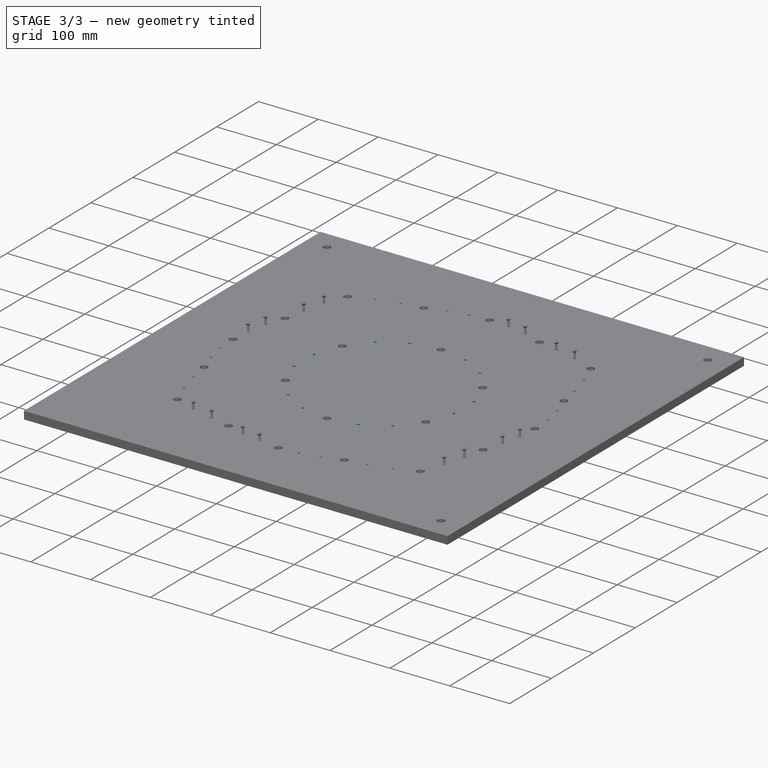
[diagram: stage 3 of 3 — iso view after this stage's code; geometry added in this stage tinted green]
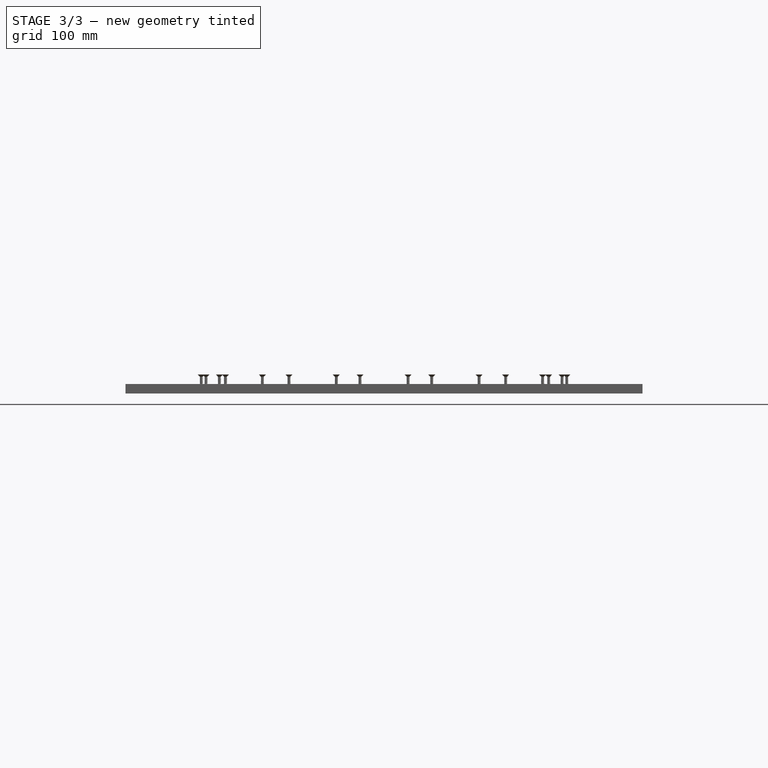
[diagram: stage 3 of 3 — front view after this stage's code; geometry added in this stage tinted green]
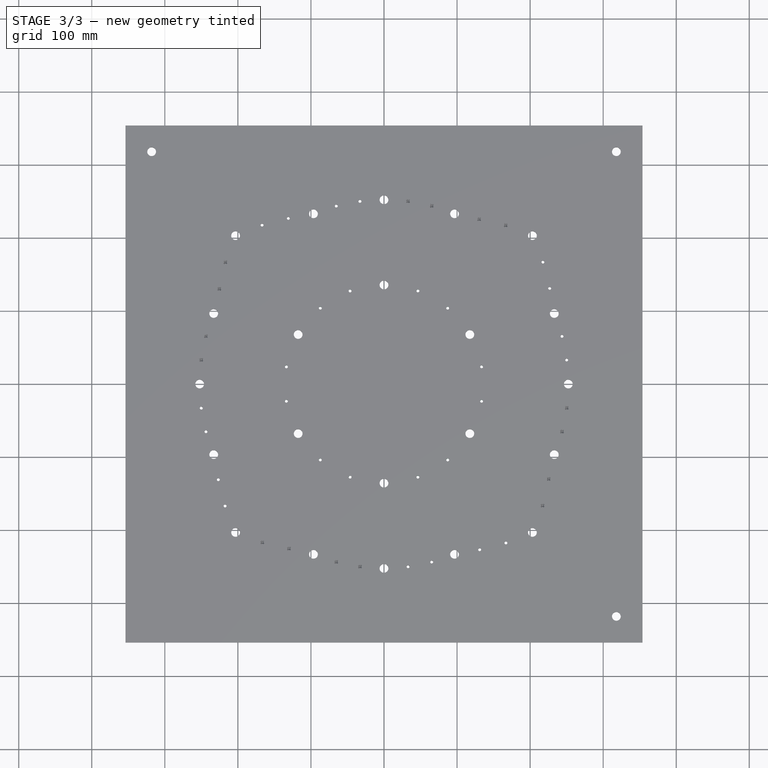
[diagram: stage 3 of 3 — top view after this stage's code; geometry added in this stage tinted green]
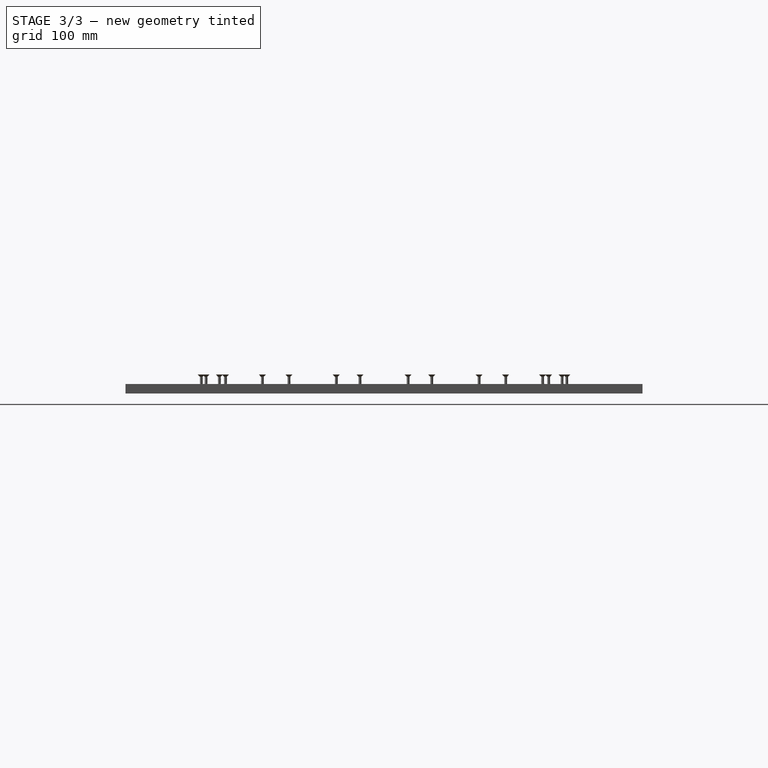
[diagram: stage 3 of 3 — right view after this stage's code; geometry added in this stage tinted green]
FEATURE [PartDesign::Pocket] Pocket002  label="LargeHoleOuterPocket"
  BaseFeature = -> MultiTransform
  Direction = (0,0,-1)
  Length = 5
  Length2 = 100
  Profile = -> Sketch006
  Type = 1
FEATURE [PartDesign::PolarPattern] PolarPattern003  label="LargeHoleOuterPolarPattern"
  Angle = 360
  Axis = -> Sketch006 [N_Axis]
  BaseFeature = -> Pocket002
  Occurrences = 4
  Originals = -> [Pocket002]
  expr: Occurrences = Spreadsheet.NumberOfStatorHoles
FEATURE [PartDesign::Pocket] Pocket003  label="LargeHoleInnerPocket"
  BaseFeature = -> PolarPattern003
  Direction = (0,0,-1)
  Length = 5
  Length2 = 100
  Profile = -> Sketch007
  Type = 1
FEATURE [PartDesign::PolarPattern] PolarPattern004  label="LargeHoleInnerPolarPattern"
  Angle = 360
  Axis = -> Z_Axis
  BaseFeature = -> Pocket003
  Occurrences = 4
  Originals = -> [Pocket003]
  expr: Angle = Spreadsheet.LargeInnerPolarPatternOverallAngle
  expr: Occurrences = Spreadsheet.LargeInnerPolarPatternOccurrences
FEATURE [Sketcher::SketchObject] Sketch  label="InnerBoltHolesSketch"
  FullyConstrained = true
  MapMode = 5
  Placement = pos=(0,0,13) rot=(0,0,1;0rad)
  Support = -> [DatumPlane001]
  expr: Constraints[2] = Spreadsheet.StatorMoldBoltRadius
  expr: Constraints[3] = Spreadsheet.IslandInnerRadius
  sketch-geometry (2):
    g0: Circle CenterX=0 CenterY=0 CenterZ=0 NormalX=0 NormalY=0 NormalZ=1 AngleXU=0 Radius=128.499
    g1: Circle CenterX=0 CenterY=128.499 CenterZ=0 NormalX=0 NormalY=0 NormalZ=1 AngleXU=0 Radius=6
  constraints (5):
    c: Coincident(g0,g-1)
    c: PointOnObject(g1,g0)
    c: Radius(g1) = 6
    c: Radius(g0) = 128.499
    c: PointOnObject(g1,g-2)
FEATURE [PartDesign::Pocket] Pocket  label="InnerBoltHolesPocket"
  BaseFeature = -> PolarPattern004
  Direction = (0,0,-1)
  Length = 5
  Length2 = 100
  Profile = -> Sketch
  Type = 1
FEATURE [PartDesign::PolarPattern] PolarPattern
  Angle = 360
  Axis = -> Z_Axis
  BaseFeature = -> Pocket
  Occurrences = 6
  Originals = -> [Pocket]
  expr: Occurrences = Spreadsheet.StatorMoldIslandNumberOfBolts
FEATURE [PartDesign::Body] Body  label="Stator_Mold_BoltShaftPattern"
  BaseFeature = -> Binder
  Group = -> [BaseFeature,DatumPlane001,Sketch005,Pocket001,MultiTransform,Mirrored,PolarPattern002,Sketch006,Pocket002,PolarPattern003,Sketch007,Pocket003,PolarPattern004,Binder,Sketch,Pocket,PolarPattern]
  Origin = -> Origin
  Tip = -> PolarPattern
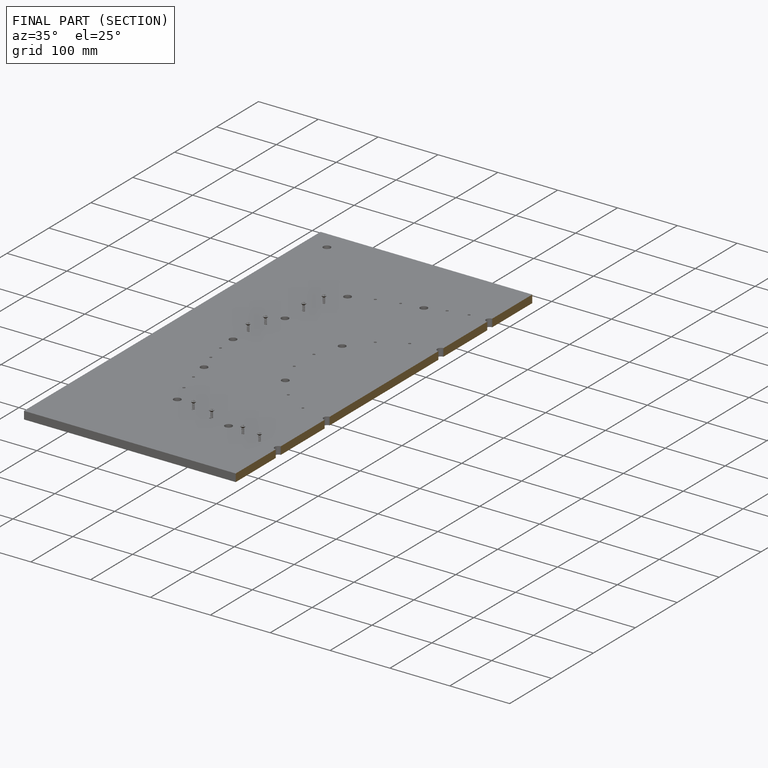
[diagram: finished part — half-section view (interior)]
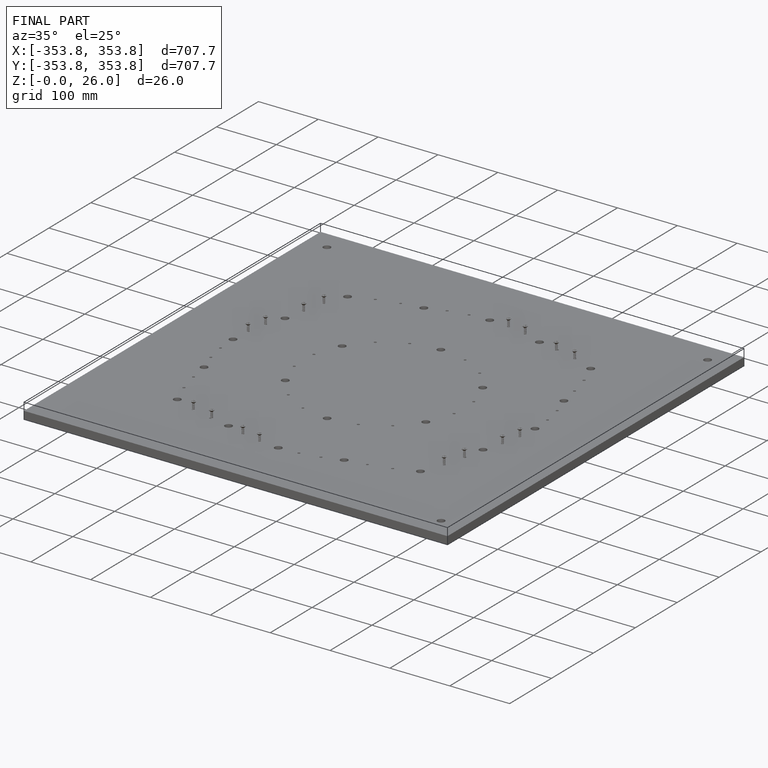
[diagram: finished part — iso view with bounding-box wireframe]
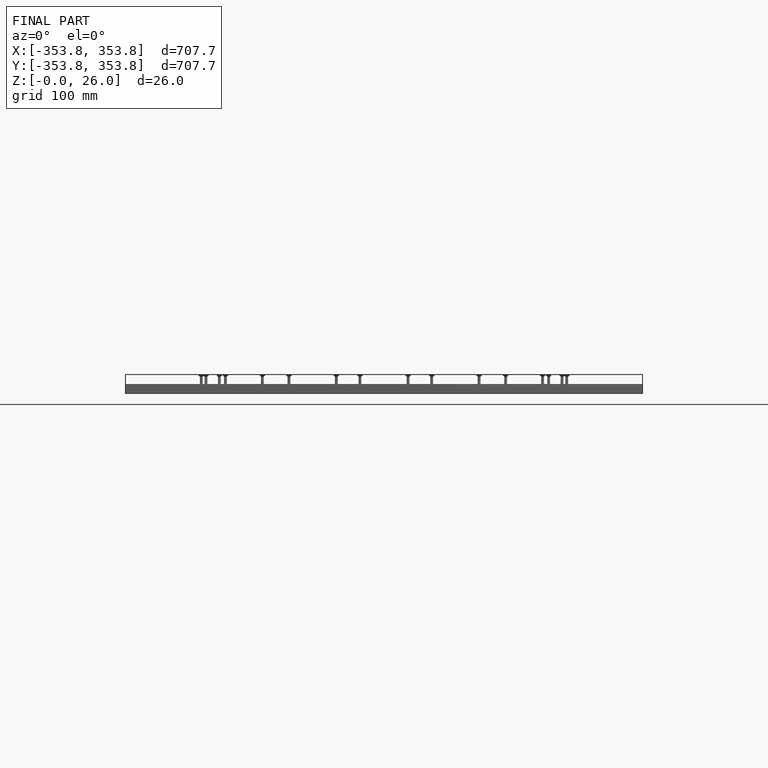
[diagram: finished part — front view with bounding-box wireframe]
